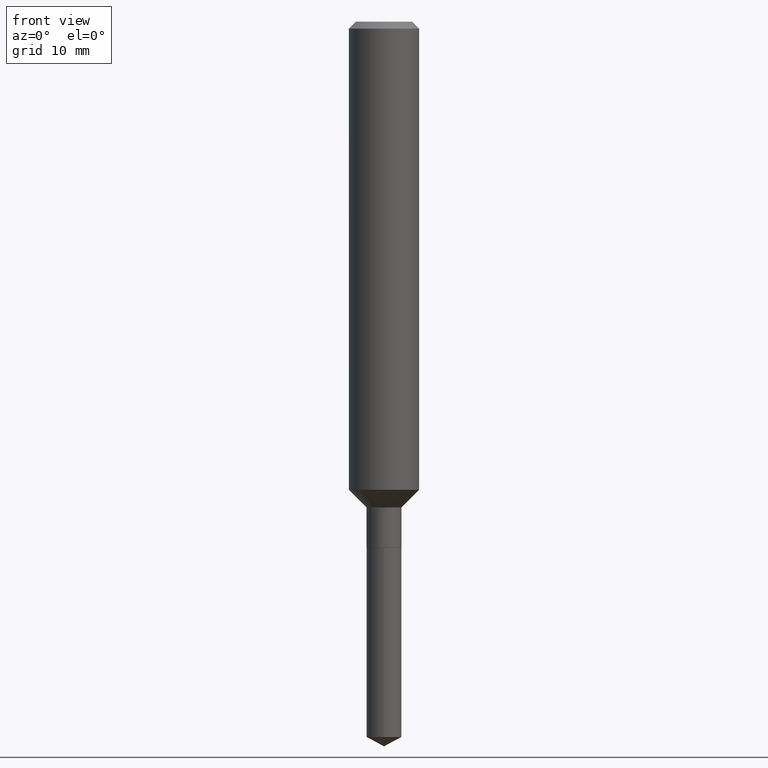
[diagram: clean part render]
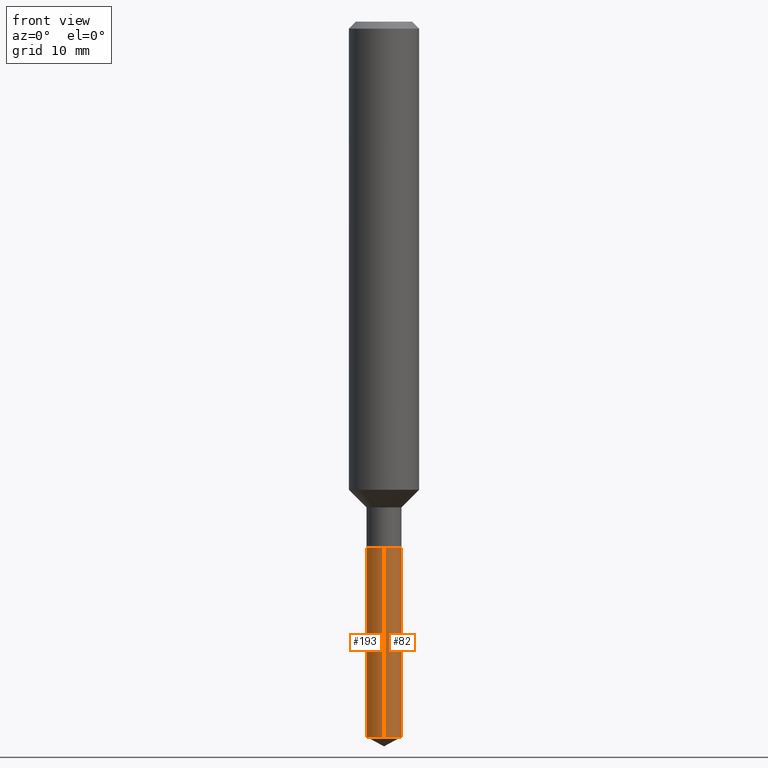
[diagram: same view with one multi-face feature highlighted, each face labeled with its STEP entity id]
A machine part, front view. The highlighted faces form ONE feature: a constant-radius fillet chain: 2 tangent blend faces with common blend radius 1.4999 mm. The faces share edges in the B-rep.
Their STEP definitions:
[1] entity #193 (Cylinder):
#3 = DIRECTION ( 'NONE',  ( -2.410626900522587161E-29, 3.541376930830032473E-15, 1.000000000000000000 ) ) ;
#7 = DIRECTION ( 'NONE',  ( -6.982962677686265922E-15, -1.000000000000000000, 4.626330217890367758E-15 ) ) ;
#28 = CIRCLE ( 'NONE', #290, 0.05905000000000001914 ) ;
#45 = AXIS2_PLACEMENT_3D ( 'NONE', #68, #299, #458 ) ;
#53 = VERTEX_POINT ( 'NONE', #366 ) ;
#68 = CARTESIAN_POINT ( 'NONE',  ( 5.870137603410133772E-29, -8.444561743127043625E-15, -2.409502558060389266 ) ) ;
#70 = VERTEX_POINT ( 'NONE', #135 ) ;
#72 = CARTESIAN_POINT ( 'NONE',  ( 4.332392537037588763E-29, -6.185508339894517569E-15, -1.771600000000000286 ) ) ;
#98 = CARTESIAN_POINT ( 'NONE',  ( 4.195754854663826338E-16, 0.05904999999999384352, -1.771600000000000508 ) ) ;
#108 = EDGE_CURVE ( 'NONE', #70, #150, #457, .T. ) ;
#119 = CARTESIAN_POINT ( 'NONE',  ( -4.123439461173309412E-16, -0.05905000000000622251, -1.771600000000000064 ) ) ;
#127 = EDGE_CURVE ( 'NONE', #70, #53, #398, .T. ) ;
#130 = ORIENTED_EDGE ( 'NONE', *, *, #316, .T. ) ;
#135 = CARTESIAN_POINT ( 'NONE',  ( 4.195754854663983124E-16, 0.05904999999999161614, -2.409502558060389710 ) ) ;
#138 = ORIENTED_EDGE ( 'NONE', *, *, #127, .F. ) ;
#141 = CYLINDRICAL_SURFACE ( 'NONE', #189, 0.05905000000000003302 ) ;
#150 = VERTEX_POINT ( 'NONE', #198 ) ;
#189 = AXIS2_PLACEMENT_3D ( 'NONE', #72, #216, #487 ) ;
#193 = ADVANCED_FACE ( 'NONE', ( #202 ), #141, .T. ) ;
#198 = CARTESIAN_POINT ( 'NONE',  ( -4.123439461173157063E-16, -0.05905000000000850541, -2.409502558060388822 ) ) ;
#202 = FACE_OUTER_BOUND ( 'NONE', #342, .T. ) ;
#216 = DIRECTION ( 'NONE',  ( -2.410626900522587161E-29, 3.541376930830032473E-15, 1.000000000000000000 ) ) ;
#228 = DIRECTION ( 'NONE',  ( -2.410626900522587161E-29, 3.541376930830032473E-15, 1.000000000000000000 ) ) ;
#232 = EDGE_CURVE ( 'NONE', #53, #404, #28, .T. ) ;
#238 = VECTOR ( 'NONE', #347, 39.37007874015748143 ) ;
#290 = AXIS2_PLACEMENT_3D ( 'NONE', #296, #3, #7 ) ;
#296 = CARTESIAN_POINT ( 'NONE',  ( 4.332392537037588763E-29, -6.185508339894517569E-15, -1.771600000000000286 ) ) ;
#299 = DIRECTION ( 'NONE',  ( -2.410626900522587161E-29, 3.541376930830032473E-15, 1.000000000000000000 ) ) ;
#304 = CARTESIAN_POINT ( 'NONE',  ( -4.123439461173307933E-16, -0.05905000000000620863, -1.771600000000000064 ) ) ;
#316 = EDGE_CURVE ( 'NONE', #150, #404, #460, .T. ) ;
#325 = ORIENTED_EDGE ( 'NONE', *, *, #108, .T. ) ;
#342 = EDGE_LOOP ( 'NONE', ( #138, #325, #130, #387 ) ) ;
#347 = DIRECTION ( 'NONE',  ( -2.410626900522587161E-29, 3.541376930830032473E-15, 1.000000000000000000 ) ) ;
#366 = CARTESIAN_POINT ( 'NONE',  ( 4.195754854663983124E-16, 0.05904999999999382965, -1.771600000000000508 ) ) ;
#387 = ORIENTED_EDGE ( 'NONE', *, *, #232, .F. ) ;
#398 = LINE ( 'NONE', #98, #238 ) ;
#404 = VERTEX_POINT ( 'NONE', #304 ) ;
#443 = VECTOR ( 'NONE', #228, 39.37007874015748143 ) ;
#457 = CIRCLE ( 'NONE', #45, 0.05905000000000005383 ) ;
#458 = DIRECTION ( 'NONE',  ( -6.982962677686265133E-15, -1.000000000000000000, 4.626330217890365392E-15 ) ) ;
#460 = LINE ( 'NONE', #119, #443 ) ;
#487 = DIRECTION ( 'NONE',  ( -6.982962677686265922E-15, -1.000000000000000000, 4.626330217890366970E-15 ) ) ;
[2] entity #82 (Cylinder):
#27 = CYLINDRICAL_SURFACE ( 'NONE', #323, 0.05905000000000003302 ) ;
#51 = DIRECTION ( 'NONE',  ( -6.982962677686265133E-15, -1.000000000000000000, 4.626330217890365392E-15 ) ) ;
#53 = VERTEX_POINT ( 'NONE', #366 ) ;
#55 = EDGE_LOOP ( 'NONE', ( #269, #167, #279, #111 ) ) ;
#70 = VERTEX_POINT ( 'NONE', #135 ) ;
#82 = ADVANCED_FACE ( 'NONE', ( #399 ), #27, .T. ) ;
#98 = CARTESIAN_POINT ( 'NONE',  ( 4.195754854663826338E-16, 0.05904999999999384352, -1.771600000000000508 ) ) ;
#111 = ORIENTED_EDGE ( 'NONE', *, *, #316, .F. ) ;
#119 = CARTESIAN_POINT ( 'NONE',  ( -4.123439461173309412E-16, -0.05905000000000622251, -1.771600000000000064 ) ) ;
#127 = EDGE_CURVE ( 'NONE', #70, #53, #398, .T. ) ;
#135 = CARTESIAN_POINT ( 'NONE',  ( 4.195754854663983124E-16, 0.05904999999999161614, -2.409502558060389710 ) ) ;
#150 = VERTEX_POINT ( 'NONE', #198 ) ;
#167 = ORIENTED_EDGE ( 'NONE', *, *, #127, .T. ) ;
#171 = CARTESIAN_POINT ( 'NONE',  ( 4.332392537037588763E-29, -6.185508339894517569E-15, -1.771600000000000286 ) ) ;
#198 = CARTESIAN_POINT ( 'NONE',  ( -4.123439461173157063E-16, -0.05905000000000850541, -2.409502558060388822 ) ) ;
#215 = CIRCLE ( 'NONE', #225, 0.05905000000000005383 ) ;
#225 = AXIS2_PLACEMENT_3D ( 'NONE', #262, #415, #51 ) ;
#228 = DIRECTION ( 'NONE',  ( -2.410626900522587161E-29, 3.541376930830032473E-15, 1.000000000000000000 ) ) ;
#231 = AXIS2_PLACEMENT_3D ( 'NONE', #171, #320, #451 ) ;
#238 = VECTOR ( 'NONE', #347, 39.37007874015748143 ) ;
#246 = DIRECTION ( 'NONE',  ( -2.410626900522587161E-29, 3.541376930830032473E-15, 1.000000000000000000 ) ) ;
#262 = CARTESIAN_POINT ( 'NONE',  ( 5.870137603410133772E-29, -8.444561743127043625E-15, -2.409502558060389266 ) ) ;
#269 = ORIENTED_EDGE ( 'NONE', *, *, #275, .T. ) ;
#275 = EDGE_CURVE ( 'NONE', #150, #70, #215, .T. ) ;
#279 = ORIENTED_EDGE ( 'NONE', *, *, #476, .F. ) ;
#304 = CARTESIAN_POINT ( 'NONE',  ( -4.123439461173307933E-16, -0.05905000000000620863, -1.771600000000000064 ) ) ;
#316 = EDGE_CURVE ( 'NONE', #150, #404, #460, .T. ) ;
#320 = DIRECTION ( 'NONE',  ( -2.410626900522587161E-29, 3.541376930830032473E-15, 1.000000000000000000 ) ) ;
#323 = AXIS2_PLACEMENT_3D ( 'NONE', #361, #246, #403 ) ;
#347 = DIRECTION ( 'NONE',  ( -2.410626900522587161E-29, 3.541376930830032473E-15, 1.000000000000000000 ) ) ;
#361 = CARTESIAN_POINT ( 'NONE',  ( 4.332392537037588763E-29, -6.185508339894517569E-15, -1.771600000000000286 ) ) ;
#366 = CARTESIAN_POINT ( 'NONE',  ( 4.195754854663983124E-16, 0.05904999999999382965, -1.771600000000000508 ) ) ;
#398 = LINE ( 'NONE', #98, #238 ) ;
#399 = FACE_OUTER_BOUND ( 'NONE', #55, .T. ) ;
#403 = DIRECTION ( 'NONE',  ( -6.982962677686265922E-15, -1.000000000000000000, 4.626330217890366970E-15 ) ) ;
#404 = VERTEX_POINT ( 'NONE', #304 ) ;
#415 = DIRECTION ( 'NONE',  ( -2.410626900522587161E-29, 3.541376930830032473E-15, 1.000000000000000000 ) ) ;
#443 = VECTOR ( 'NONE', #228, 39.37007874015748143 ) ;
#451 = DIRECTION ( 'NONE',  ( -6.982962677686265922E-15, -1.000000000000000000, 4.626330217890367758E-15 ) ) ;
#460 = LINE ( 'NONE', #119, #443 ) ;
#476 = EDGE_CURVE ( 'NONE', #404, #53, #484, .T. ) ;
#484 = CIRCLE ( 'NONE', #231, 0.05905000000000001914 ) ;